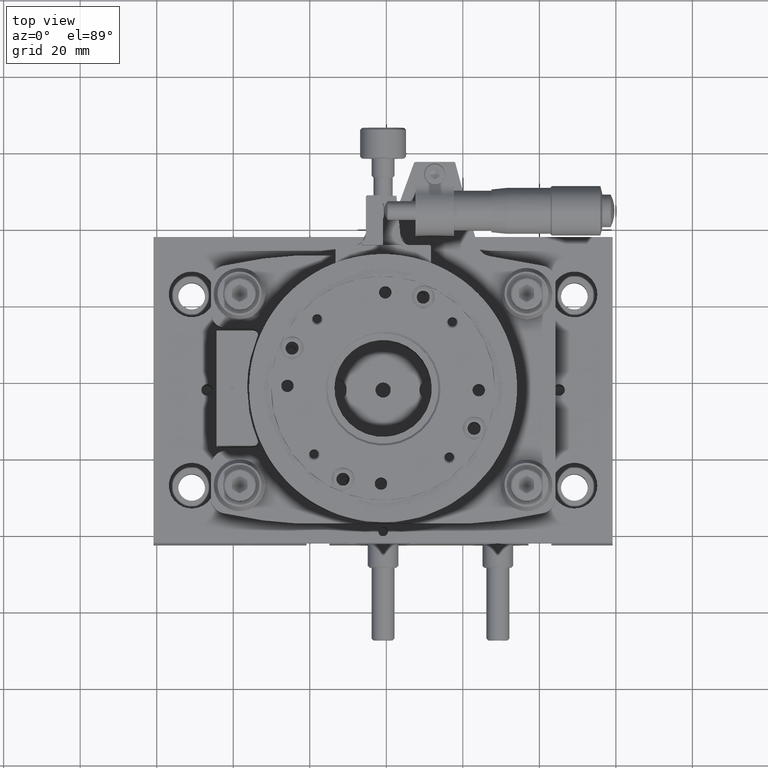
[diagram: clean part render]
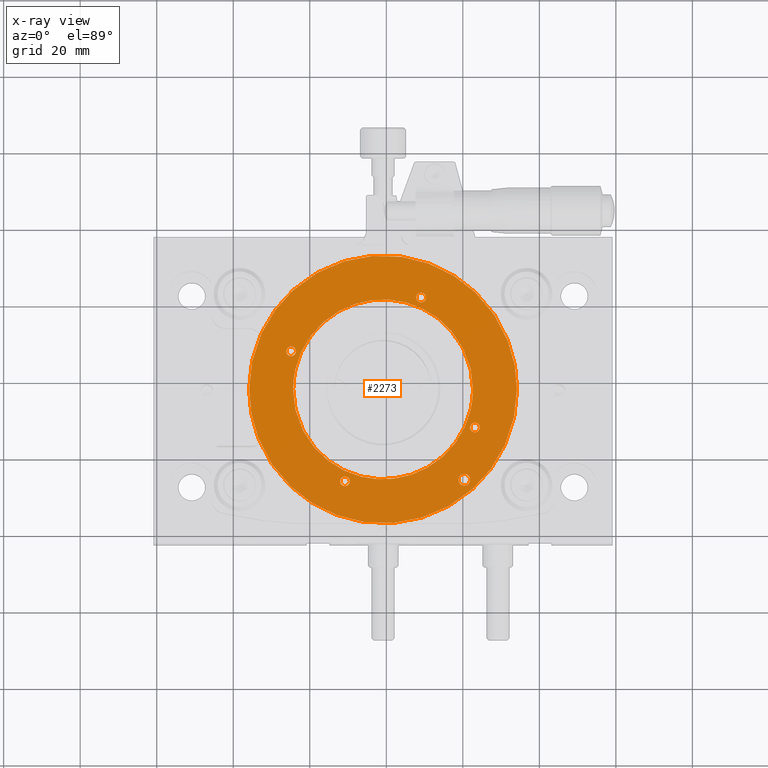
[diagram: x-ray — body ghosted, one internal face saturated and labeled with its STEP entity id]
A machine part, top view, then the same camera in x-ray: the body is ghosted and one INTERNAL B-rep face — a face not visible from any outside direction — is saturated and labeled: STEP entity #2273.
In plain terms, the highlighted face is a freeform B-spline surface patch.
Its self-contained STEP definition (entity closure, byte-faithful):
#2273=ADVANCED_FACE('',(#5470,#3413,#3414,#3415,#3416,#3417,#3418),#103291,
 .T.);
#3413=FACE_BOUND('',#8388,.T.);
#3414=FACE_BOUND('',#8389,.T.);
#3415=FACE_BOUND('',#8390,.T.);
#3416=FACE_BOUND('',#8391,.T.);
#3417=FACE_BOUND('',#8392,.T.);
#3418=FACE_BOUND('',#8393,.T.);
#5470=FACE_OUTER_BOUND('',#8387,.T.);
#8387=EDGE_LOOP('',(#18965,#18966));
#8388=EDGE_LOOP('',(#18967,#18968,#18969));
#8389=EDGE_LOOP('',(#18970,#18971));
#8390=EDGE_LOOP('',(#18972,#18973));
#8391=EDGE_LOOP('',(#18974,#18975));
#8392=EDGE_LOOP('',(#18976,#18977));
#8393=EDGE_LOOP('',(#18978,#18979));
#18965=ORIENTED_EDGE('',*,*,#89167,.T.);
#18966=ORIENTED_EDGE('',*,*,#89168,.T.);
#18967=ORIENTED_EDGE('',*,*,#84372,.F.);
#18968=ORIENTED_EDGE('',*,*,#84375,.F.);
#18969=ORIENTED_EDGE('',*,*,#84373,.F.);
#18970=ORIENTED_EDGE('',*,*,#89169,.T.);
#18971=ORIENTED_EDGE('',*,*,#89170,.T.);
#18972=ORIENTED_EDGE('',*,*,#89171,.T.);
#18973=ORIENTED_EDGE('',*,*,#89172,.T.);
#18974=ORIENTED_EDGE('',*,*,#89173,.T.);
#18975=ORIENTED_EDGE('',*,*,#89174,.T.);
#18976=ORIENTED_EDGE('',*,*,#89175,.T.);
#18977=ORIENTED_EDGE('',*,*,#89176,.T.);
#18978=ORIENTED_EDGE('',*,*,#89177,.T.);
#18979=ORIENTED_EDGE('',*,*,#89178,.T.);
#25689=B_SPLINE_CURVE_WITH_KNOTS('',1,(#122135,#122136),.UNSPECIFIED.,.F.,
 .F.,(2,2),(-4.74611992793683,-4.71238898038469),.UNSPECIFIED.);
#25690=B_SPLINE_CURVE_WITH_KNOTS('',1,(#122142,#122143),.UNSPECIFIED.,.F.,
 .F.,(2,2),(-4.71238898038469,0.),.UNSPECIFIED.);
#25693=B_SPLINE_CURVE_WITH_KNOTS('',1,(#122153,#122154),.UNSPECIFIED.,.F.,
 .F.,(2,2),(-9.42477796076938,-4.74611992793683),.UNSPECIFIED.);
#38300=B_SPLINE_CURVE_WITH_KNOTS('',1,(#156295,#156296),.UNSPECIFIED.,.F.,
 .F.,(2,2),(0.,73.8274273593593),.UNSPECIFIED.);
#38305=B_SPLINE_CURVE_WITH_KNOTS('',1,(#156310,#156311),.UNSPECIFIED.,.F.,
 .F.,(2,2),(73.8274273593593,147.65485471872),.UNSPECIFIED.);
#38334=B_SPLINE_CURVE_WITH_KNOTS('',1,(#156515,#156516),.UNSPECIFIED.,.F.,
 .F.,(2,2),(0.,3.92699081698724),.UNSPECIFIED.);
#38341=B_SPLINE_CURVE_WITH_KNOTS('',1,(#156529,#156530),.UNSPECIFIED.,.F.,
 .F.,(2,2),(0.,3.92699081698724),.UNSPECIFIED.);
#38349=B_SPLINE_CURVE_WITH_KNOTS('',1,(#156545,#156546),.UNSPECIFIED.,.F.,
 .F.,(2,2),(0.,3.92699081698724),.UNSPECIFIED.);
#38356=B_SPLINE_CURVE_WITH_KNOTS('',1,(#156559,#156560),.UNSPECIFIED.,.F.,
 .F.,(2,2),(0.,3.92699081698724),.UNSPECIFIED.);
#38364=B_SPLINE_CURVE_WITH_KNOTS('',1,(#156575,#156576),.UNSPECIFIED.,.F.,
 .F.,(2,2),(-219.911485751286,-109.955742875643),.UNSPECIFIED.);
#39164=B_SPLINE_CURVE_WITH_KNOTS('',1,(#158719,#158720),.UNSPECIFIED.,.F.,
 .F.,(2,2),(3.92699081698724,7.85398163397448),.UNSPECIFIED.);
#39168=B_SPLINE_CURVE_WITH_KNOTS('',1,(#158727,#158728),.UNSPECIFIED.,.F.,
 .F.,(2,2),(3.92699081698724,7.85398163397448),.UNSPECIFIED.);
#39173=B_SPLINE_CURVE_WITH_KNOTS('',1,(#158737,#158738),.UNSPECIFIED.,.F.,
 .F.,(2,2),(3.92699081698724,7.85398163397448),.UNSPECIFIED.);
#39179=B_SPLINE_CURVE_WITH_KNOTS('',1,(#158749,#158750),.UNSPECIFIED.,.F.,
 .F.,(2,2),(3.92699081698724,7.85398163397448),.UNSPECIFIED.);
#39542=B_SPLINE_CURVE_WITH_KNOTS('',1,(#159475,#159476),.UNSPECIFIED.,.F.,
 .F.,(2,2),(-109.955742875643,0.),.UNSPECIFIED.);
#45518=PCURVE('',#100951,#61111);
#45519=PCURVE('',#100951,#61112);
#45521=PCURVE('',#100952,#61114);
#54370=PCURVE('',#103291,#69963);
#54371=PCURVE('',#103291,#69964);
#54372=PCURVE('',#103291,#69965);
#54373=PCURVE('',#103291,#69966);
#54374=PCURVE('',#103291,#69967);
#54375=PCURVE('',#103291,#69968);
#54376=PCURVE('',#103291,#69969);
#54377=PCURVE('',#103291,#69970);
#54378=PCURVE('',#103291,#69971);
#54379=PCURVE('',#103291,#69972);
#54380=PCURVE('',#103291,#69973);
#54381=PCURVE('',#103291,#69974);
#54382=PCURVE('',#103291,#69975);
#54383=PCURVE('',#103291,#69976);
#54384=PCURVE('',#103291,#69977);
#54386=PCURVE('',#101021,#69979);
#54390=PCURVE('',#101022,#69983);
#54429=PCURVE('',#101028,#70022);
#54434=PCURVE('',#101029,#70027);
#54440=PCURVE('',#101030,#70033);
#54445=PCURVE('',#101031,#70038);
#54450=PCURVE('',#101032,#70043);
#55184=PCURVE('',#101068,#70777);
#55188=PCURVE('',#101069,#70781);
#55193=PCURVE('',#101070,#70786);
#55199=PCURVE('',#101071,#70792);
#55562=PCURVE('',#101072,#71155);
#61111=DEFINITIONAL_REPRESENTATION('',(#25689),#197026);
#61112=DEFINITIONAL_REPRESENTATION('',(#25690),#197026);
#61114=DEFINITIONAL_REPRESENTATION('',(#25693),#197026);
#69963=DEFINITIONAL_REPRESENTATION('',(#93286),#197026);
#69964=DEFINITIONAL_REPRESENTATION('',(#93288),#197026);
#69965=DEFINITIONAL_REPRESENTATION('',(#93289),#197026);
#69966=DEFINITIONAL_REPRESENTATION('',(#93290),#197026);
#69967=DEFINITIONAL_REPRESENTATION('',(#93291),#197026);
#69968=DEFINITIONAL_REPRESENTATION('',(#93293),#197026);
#69969=DEFINITIONAL_REPRESENTATION('',(#93295),#197026);
#69970=DEFINITIONAL_REPRESENTATION('',(#93297),#197026);
#69971=DEFINITIONAL_REPRESENTATION('',(#93299),#197026);
#69972=DEFINITIONAL_REPRESENTATION('',(#93301),#197026);
#69973=DEFINITIONAL_REPRESENTATION('',(#93303),#197026);
#69974=DEFINITIONAL_REPRESENTATION('',(#93305),#197026);
#69975=DEFINITIONAL_REPRESENTATION('',(#93307),#197026);
#69976=DEFINITIONAL_REPRESENTATION('',(#93309),#197026);
#69977=DEFINITIONAL_REPRESENTATION('',(#93311),#197026);
#69979=DEFINITIONAL_REPRESENTATION('',(#38300),#197026);
#69983=DEFINITIONAL_REPRESENTATION('',(#38305),#197026);
#70022=DEFINITIONAL_REPRESENTATION('',(#38334),#197026);
#70027=DEFINITIONAL_REPRESENTATION('',(#38341),#197026);
#70033=DEFINITIONAL_REPRESENTATION('',(#38349),#197026);
#70038=DEFINITIONAL_REPRESENTATION('',(#38356),#197026);
#70043=DEFINITIONAL_REPRESENTATION('',(#38364),#197026);
#70777=DEFINITIONAL_REPRESENTATION('',(#39164),#197026);
#70781=DEFINITIONAL_REPRESENTATION('',(#39168),#197026);
#70786=DEFINITIONAL_REPRESENTATION('',(#39173),#197026);
#70792=DEFINITIONAL_REPRESENTATION('',(#39179),#197026);
#71155=DEFINITIONAL_REPRESENTATION('',(#39542),#197026);
#76514=SURFACE_CURVE('',#92247,(#45518,#54372),.PCURVE_S1.);
#76515=SURFACE_CURVE('',#92248,(#45519,#54374),.PCURVE_S1.);
#76517=SURFACE_CURVE('',#92249,(#45521,#54373),.PCURVE_S1.);
#81309=SURFACE_CURVE('',#93285,(#54370,#54450),.PCURVE_S1.);
#81310=SURFACE_CURVE('',#93287,(#54371,#55562),.PCURVE_S1.);
#81311=SURFACE_CURVE('',#93292,(#54375,#55199),.PCURVE_S1.);
#81312=SURFACE_CURVE('',#93294,(#54376,#54445),.PCURVE_S1.);
#81313=SURFACE_CURVE('',#93296,(#54377,#55193),.PCURVE_S1.);
#81314=SURFACE_CURVE('',#93298,(#54378,#54440),.PCURVE_S1.);
#81315=SURFACE_CURVE('',#93300,(#54379,#55188),.PCURVE_S1.);
#81316=SURFACE_CURVE('',#93302,(#54380,#54434),.PCURVE_S1.);
#81317=SURFACE_CURVE('',#93304,(#54381,#55184),.PCURVE_S1.);
#81318=SURFACE_CURVE('',#93306,(#54382,#54429),.PCURVE_S1.);
#81319=SURFACE_CURVE('',#93308,(#54383,#54390),.PCURVE_S1.);
#81320=SURFACE_CURVE('',#93310,(#54384,#54386),.PCURVE_S1.);
#84372=EDGE_CURVE('',#95797,#98999,#76514,.T.);
#84373=EDGE_CURVE('',#98999,#95796,#76515,.T.);
#84375=EDGE_CURVE('',#95796,#95797,#76517,.T.);
#89167=EDGE_CURVE('',#98997,#98998,#81309,.T.);
#89168=EDGE_CURVE('',#98998,#98997,#81310,.T.);
#89169=EDGE_CURVE('',#99001,#99000,#81311,.T.);
#89170=EDGE_CURVE('',#99000,#99001,#81312,.T.);
#89171=EDGE_CURVE('',#99003,#99002,#81313,.T.);
#89172=EDGE_CURVE('',#99002,#99003,#81314,.T.);
#89173=EDGE_CURVE('',#99005,#99004,#81315,.T.);
#89174=EDGE_CURVE('',#99004,#99005,#81316,.T.);
#89175=EDGE_CURVE('',#99007,#99006,#81317,.T.);
#89176=EDGE_CURVE('',#99006,#99007,#81318,.T.);
#89177=EDGE_CURVE('',#99009,#99008,#81319,.T.);
#89178=EDGE_CURVE('',#99008,#99009,#81320,.T.);
#92247=(
BOUNDED_CURVE()
B_SPLINE_CURVE(2,(#122132,#122133,#122134),.UNSPECIFIED.,.F.,.F.)
B_SPLINE_CURVE_WITH_KNOTS((3,3),(-4.74611992793683,-4.71238898038469),
 .UNSPECIFIED.)
CURVE()
GEOMETRIC_REPRESENTATION_ITEM()
RATIONAL_B_SPLINE_CURVE((1.,0.999936790842422,1.))
REPRESENTATION_ITEM('')
);
#92248=(
BOUNDED_CURVE()
B_SPLINE_CURVE(2,(#122137,#122138,#122139,#122140,#122141),
 .UNSPECIFIED.,.F.,.F.)
B_SPLINE_CURVE_WITH_KNOTS((3,2,3),(-4.71238898038469,-2.35619449019234,
0.),.UNSPECIFIED.)
CURVE()
GEOMETRIC_REPRESENTATION_ITEM()
RATIONAL_B_SPLINE_CURVE((1.,0.707106781186544,1.,0.707106781186544,1.))
REPRESENTATION_ITEM('')
);
#92249=(
BOUNDED_CURVE()
B_SPLINE_CURVE(2,(#122148,#122149,#122150,#122151,#122152),
 .UNSPECIFIED.,.F.,.F.)
B_SPLINE_CURVE_WITH_KNOTS((3,2,3),(-9.42477796076938,-7.08544894435311,
-4.74611992793683),.UNSPECIFIED.)
CURVE()
GEOMETRIC_REPRESENTATION_ITEM()
RATIONAL_B_SPLINE_CURVE((1.,0.711070816544498,1.,0.711070816544498,1.))
REPRESENTATION_ITEM('')
);
#93285=(
BOUNDED_CURVE()
B_SPLINE_CURVE(2,(#156158,#156159,#156160,#156161,#156162),
 .UNSPECIFIED.,.F.,.F.)
B_SPLINE_CURVE_WITH_KNOTS((3,2,3),(-219.911485751286,-164.933614313464,
-109.955742875643),.UNSPECIFIED.)
CURVE()
GEOMETRIC_REPRESENTATION_ITEM()
RATIONAL_B_SPLINE_CURVE((1.,0.707106781186548,1.,0.707106781186548,1.))
REPRESENTATION_ITEM('')
);
#93286=(
BOUNDED_CURVE()
B_SPLINE_CURVE(2,(#156163,#156164,#156165,#156166,#156167),
 .UNSPECIFIED.,.F.,.F.)
B_SPLINE_CURVE_WITH_KNOTS((3,2,3),(-219.911485751286,-164.933614313464,
-109.955742875643),.UNSPECIFIED.)
CURVE()
GEOMETRIC_REPRESENTATION_ITEM()
RATIONAL_B_SPLINE_CURVE((1.,0.707106781186548,1.,0.707106781186548,1.))
REPRESENTATION_ITEM('')
);
#93287=(
BOUNDED_CURVE()
B_SPLINE_CURVE(2,(#156168,#156169,#156170,#156171,#156172),
 .UNSPECIFIED.,.F.,.F.)
B_SPLINE_CURVE_WITH_KNOTS((3,2,3),(-109.955742875643,-54.9778714378214,
0.),.UNSPECIFIED.)
CURVE()
GEOMETRIC_REPRESENTATION_ITEM()
RATIONAL_B_SPLINE_CURVE((1.,0.707106781186548,1.,0.707106781186548,1.))
REPRESENTATION_ITEM('')
);
#93288=(
BOUNDED_CURVE()
B_SPLINE_CURVE(2,(#156173,#156174,#156175,#156176,#156177),
 .UNSPECIFIED.,.F.,.F.)
B_SPLINE_CURVE_WITH_KNOTS((3,2,3),(-109.955742875643,-54.9778714378214,
0.),.UNSPECIFIED.)
CURVE()
GEOMETRIC_REPRESENTATION_ITEM()
RATIONAL_B_SPLINE_CURVE((1.,0.707106781186548,1.,0.707106781186548,1.))
REPRESENTATION_ITEM('')
);
#93289=(
BOUNDED_CURVE()
B_SPLINE_CURVE(2,(#156178,#156179,#156180),.UNSPECIFIED.,.F.,.F.)
B_SPLINE_CURVE_WITH_KNOTS((3,3),(-4.74611992793683,-4.71238898038469),
 .UNSPECIFIED.)
CURVE()
GEOMETRIC_REPRESENTATION_ITEM()
RATIONAL_B_SPLINE_CURVE((1.,0.999936790842417,1.))
REPRESENTATION_ITEM('')
);
#93290=(
BOUNDED_CURVE()
B_SPLINE_CURVE(2,(#156181,#156182,#156183,#156184,#156185),
 .UNSPECIFIED.,.F.,.F.)
B_SPLINE_CURVE_WITH_KNOTS((3,2,3),(-9.42477796076938,-7.06678796069878,
-4.74611992793683),.UNSPECIFIED.)
CURVE()
GEOMETRIC_REPRESENTATION_ITEM()
RATIONAL_B_SPLINE_CURVE((1.,0.707106781186548,1.,0.715012378631638,1.))
REPRESENTATION_ITEM('')
);
#93291=(
BOUNDED_CURVE()
B_SPLINE_CURVE(2,(#156186,#156187,#156188,#156189,#156190),
 .UNSPECIFIED.,.F.,.F.)
B_SPLINE_CURVE_WITH_KNOTS((3,2,3),(-4.71238898038469,-2.35619449019234,
0.),.UNSPECIFIED.)
CURVE()
GEOMETRIC_REPRESENTATION_ITEM()
RATIONAL_B_SPLINE_CURVE((1.,0.707106781186548,1.,0.707106781186548,1.))
REPRESENTATION_ITEM('')
);
#93292=(
BOUNDED_CURVE()
B_SPLINE_CURVE(2,(#156191,#156192,#156193,#156194,#156195),
 .UNSPECIFIED.,.F.,.F.)
B_SPLINE_CURVE_WITH_KNOTS((3,2,3),(3.92699081698724,5.89048622548086,7.85398163397448),
 .UNSPECIFIED.)
CURVE()
GEOMETRIC_REPRESENTATION_ITEM()
RATIONAL_B_SPLINE_CURVE((1.,0.707106781186548,1.,0.707106781186548,1.))
REPRESENTATION_ITEM('')
);
#93293=(
BOUNDED_CURVE()
B_SPLINE_CURVE(2,(#156196,#156197,#156198,#156199,#156200),
 .UNSPECIFIED.,.F.,.F.)
B_SPLINE_CURVE_WITH_KNOTS((3,2,3),(3.92699081698724,5.89048622548086,7.85398163397448),
 .UNSPECIFIED.)
CURVE()
GEOMETRIC_REPRESENTATION_ITEM()
RATIONAL_B_SPLINE_CURVE((1.,0.707106781186548,1.,0.707106781186548,1.))
REPRESENTATION_ITEM('')
);
#93294=(
BOUNDED_CURVE()
B_SPLINE_CURVE(2,(#156201,#156202,#156203,#156204,#156205),
 .UNSPECIFIED.,.F.,.F.)
B_SPLINE_CURVE_WITH_KNOTS((3,2,3),(0.,1.96349540849362,3.92699081698724),
 .UNSPECIFIED.)
CURVE()
GEOMETRIC_REPRESENTATION_ITEM()
RATIONAL_B_SPLINE_CURVE((1.,0.707106781186548,1.,0.707106781186548,1.))
REPRESENTATION_ITEM('')
);
#93295=(
BOUNDED_CURVE()
B_SPLINE_CURVE(2,(#156206,#156207,#156208,#156209,#156210),
 .UNSPECIFIED.,.F.,.F.)
B_SPLINE_CURVE_WITH_KNOTS((3,2,3),(0.,1.96349540849362,3.92699081698724),
 .UNSPECIFIED.)
CURVE()
GEOMETRIC_REPRESENTATION_ITEM()
RATIONAL_B_SPLINE_CURVE((1.,0.707106781186548,1.,0.707106781186548,1.))
REPRESENTATION_ITEM('')
);
#93296=(
BOUNDED_CURVE()
B_SPLINE_CURVE(2,(#156211,#156212,#156213,#156214,#156215),
 .UNSPECIFIED.,.F.,.F.)
B_SPLINE_CURVE_WITH_KNOTS((3,2,3),(3.92699081698724,5.89048622548086,7.85398163397448),
 .UNSPECIFIED.)
CURVE()
GEOMETRIC_REPRESENTATION_ITEM()
RATIONAL_B_SPLINE_CURVE((1.,0.707106781186549,1.,0.707106781186549,1.))
REPRESENTATION_ITEM('')
);
#93297=(
BOUNDED_CURVE()
B_SPLINE_CURVE(2,(#156216,#156217,#156218,#156219,#156220),
 .UNSPECIFIED.,.F.,.F.)
B_SPLINE_CURVE_WITH_KNOTS((3,2,3),(3.92699081698724,5.89048622548086,7.85398163397448),
 .UNSPECIFIED.)
CURVE()
GEOMETRIC_REPRESENTATION_ITEM()
RATIONAL_B_SPLINE_CURVE((1.,0.707106781186548,1.,0.707106781186548,1.))
REPRESENTATION_ITEM('')
);
#93298=(
BOUNDED_CURVE()
B_SPLINE_CURVE(2,(#156221,#156222,#156223,#156224,#156225),
 .UNSPECIFIED.,.F.,.F.)
B_SPLINE_CURVE_WITH_KNOTS((3,2,3),(0.,1.96349540849362,3.92699081698724),
 .UNSPECIFIED.)
CURVE()
GEOMETRIC_REPRESENTATION_ITEM()
RATIONAL_B_SPLINE_CURVE((1.,0.707106781186541,1.,0.707106781186541,1.))
REPRESENTATION_ITEM('')
);
#93299=(
BOUNDED_CURVE()
B_SPLINE_CURVE(2,(#156226,#156227,#156228,#156229,#156230),
 .UNSPECIFIED.,.F.,.F.)
B_SPLINE_CURVE_WITH_KNOTS((3,2,3),(0.,1.96349540849362,3.92699081698724),
 .UNSPECIFIED.)
CURVE()
GEOMETRIC_REPRESENTATION_ITEM()
RATIONAL_B_SPLINE_CURVE((1.,0.707106781186548,1.,0.707106781186548,1.))
REPRESENTATION_ITEM('')
);
#93300=(
BOUNDED_CURVE()
B_SPLINE_CURVE(2,(#156231,#156232,#156233,#156234,#156235),
 .UNSPECIFIED.,.F.,.F.)
B_SPLINE_CURVE_WITH_KNOTS((3,2,3),(3.92699081698724,5.89048622548086,7.85398163397448),
 .UNSPECIFIED.)
CURVE()
GEOMETRIC_REPRESENTATION_ITEM()
RATIONAL_B_SPLINE_CURVE((1.,0.707106781186548,1.,0.707106781186548,1.))
REPRESENTATION_ITEM('')
);
#93301=(
BOUNDED_CURVE()
B_SPLINE_CURVE(2,(#156236,#156237,#156238,#156239,#156240),
 .UNSPECIFIED.,.F.,.F.)
B_SPLINE_CURVE_WITH_KNOTS((3,2,3),(3.92699081698724,5.89048622548086,7.85398163397448),
 .UNSPECIFIED.)
CURVE()
GEOMETRIC_REPRESENTATION_ITEM()
RATIONAL_B_SPLINE_CURVE((1.,0.707106781186548,1.,0.707106781186548,1.))
REPRESENTATION_ITEM('')
);
#93302=(
BOUNDED_CURVE()
B_SPLINE_CURVE(2,(#156241,#156242,#156243,#156244,#156245),
 .UNSPECIFIED.,.F.,.F.)
B_SPLINE_CURVE_WITH_KNOTS((3,2,3),(0.,1.96349540849362,3.92699081698724),
 .UNSPECIFIED.)
CURVE()
GEOMETRIC_REPRESENTATION_ITEM()
RATIONAL_B_SPLINE_CURVE((1.,0.707106781186548,1.,0.707106781186548,1.))
REPRESENTATION_ITEM('')
);
#93303=(
BOUNDED_CURVE()
B_SPLINE_CURVE(2,(#156246,#156247,#156248,#156249,#156250),
 .UNSPECIFIED.,.F.,.F.)
B_SPLINE_CURVE_WITH_KNOTS((3,2,3),(0.,1.96349540849362,3.92699081698724),
 .UNSPECIFIED.)
CURVE()
GEOMETRIC_REPRESENTATION_ITEM()
RATIONAL_B_SPLINE_CURVE((1.,0.707106781186548,1.,0.707106781186548,1.))
REPRESENTATION_ITEM('')
);
#93304=(
BOUNDED_CURVE()
B_SPLINE_CURVE(2,(#156251,#156252,#156253,#156254,#156255),
 .UNSPECIFIED.,.F.,.F.)
B_SPLINE_CURVE_WITH_KNOTS((3,2,3),(3.92699081698724,5.89048622548086,7.85398163397448),
 .UNSPECIFIED.)
CURVE()
GEOMETRIC_REPRESENTATION_ITEM()
RATIONAL_B_SPLINE_CURVE((1.,0.707106781186549,1.,0.707106781186549,1.))
REPRESENTATION_ITEM('')
);
#93305=(
BOUNDED_CURVE()
B_SPLINE_CURVE(2,(#156256,#156257,#156258,#156259,#156260),
 .UNSPECIFIED.,.F.,.F.)
B_SPLINE_CURVE_WITH_KNOTS((3,2,3),(3.92699081698724,5.89048622548086,7.85398163397448),
 .UNSPECIFIED.)
CURVE()
GEOMETRIC_REPRESENTATION_ITEM()
RATIONAL_B_SPLINE_CURVE((1.,0.707106781186548,1.,0.707106781186548,1.))
REPRESENTATION_ITEM('')
);
#93306=(
BOUNDED_CURVE()
B_SPLINE_CURVE(2,(#156261,#156262,#156263,#156264,#156265),
 .UNSPECIFIED.,.F.,.F.)
B_SPLINE_CURVE_WITH_KNOTS((3,2,3),(0.,1.96349540849362,3.92699081698724),
 .UNSPECIFIED.)
CURVE()
GEOMETRIC_REPRESENTATION_ITEM()
RATIONAL_B_SPLINE_CURVE((1.,0.707106781186544,1.,0.707106781186544,1.))
REPRESENTATION_ITEM('')
);
#93307=(
BOUNDED_CURVE()
B_SPLINE_CURVE(2,(#156266,#156267,#156268,#156269,#156270),
 .UNSPECIFIED.,.F.,.F.)
B_SPLINE_CURVE_WITH_KNOTS((3,2,3),(0.,1.96349540849362,3.92699081698724),
 .UNSPECIFIED.)
CURVE()
GEOMETRIC_REPRESENTATION_ITEM()
RATIONAL_B_SPLINE_CURVE((1.,0.707106781186548,1.,0.707106781186548,1.))
REPRESENTATION_ITEM('')
);
#93308=(
BOUNDED_CURVE()
B_SPLINE_CURVE(2,(#156271,#156272,#156273,#156274,#156275),
 .UNSPECIFIED.,.F.,.F.)
B_SPLINE_CURVE_WITH_KNOTS((3,2,3),(73.8274273593593,110.74114103904,147.65485471872),
 .UNSPECIFIED.)
CURVE()
GEOMETRIC_REPRESENTATION_ITEM()
RATIONAL_B_SPLINE_CURVE((1.,0.707106781186548,1.,0.707106781186548,1.))
REPRESENTATION_ITEM('')
);
#93309=(
BOUNDED_CURVE()
B_SPLINE_CURVE(2,(#156276,#156277,#156278,#156279,#156280),
 .UNSPECIFIED.,.F.,.F.)
B_SPLINE_CURVE_WITH_KNOTS((3,2,3),(73.8274273593593,110.74114103904,147.65485471872),
 .UNSPECIFIED.)
CURVE()
GEOMETRIC_REPRESENTATION_ITEM()
RATIONAL_B_SPLINE_CURVE((1.,0.707106781186548,1.,0.707106781186548,1.))
REPRESENTATION_ITEM('')
);
#93310=(
BOUNDED_CURVE()
B_SPLINE_CURVE(2,(#156281,#156282,#156283,#156284,#156285),
 .UNSPECIFIED.,.F.,.F.)
B_SPLINE_CURVE_WITH_KNOTS((3,2,3),(0.,36.9137136796797,73.8274273593593),
 .UNSPECIFIED.)
CURVE()
GEOMETRIC_REPRESENTATION_ITEM()
RATIONAL_B_SPLINE_CURVE((1.,0.707106781186548,1.,0.707106781186548,1.))
REPRESENTATION_ITEM('')
);
#93311=(
BOUNDED_CURVE()
B_SPLINE_CURVE(2,(#156286,#156287,#156288,#156289,#156290),
 .UNSPECIFIED.,.F.,.F.)
B_SPLINE_CURVE_WITH_KNOTS((3,2,3),(0.,36.9137136796797,73.8274273593593),
 .UNSPECIFIED.)
CURVE()
GEOMETRIC_REPRESENTATION_ITEM()
RATIONAL_B_SPLINE_CURVE((1.,0.707106781186548,1.,0.707106781186548,1.))
REPRESENTATION_ITEM('')
);
#95796=VERTEX_POINT('',#118524);
#95797=VERTEX_POINT('',#118525);
#98997=VERTEX_POINT('',#121725);
#98998=VERTEX_POINT('',#121726);
#98999=VERTEX_POINT('',#121727);
#99000=VERTEX_POINT('',#121728);
#99001=VERTEX_POINT('',#121729);
#99002=VERTEX_POINT('',#121730);
#99003=VERTEX_POINT('',#121731);
#99004=VERTEX_POINT('',#121732);
#99005=VERTEX_POINT('',#121733);
#99006=VERTEX_POINT('',#121734);
#99007=VERTEX_POINT('',#121735);
#99008=VERTEX_POINT('',#121736);
#99009=VERTEX_POINT('',#121737);
#100951=(
BOUNDED_SURFACE()
B_SPLINE_SURFACE(2,1,((#107651,#107652),(#107653,#107654),(#107655,#107656),
(#107657,#107658),(#107659,#107660),(#107661,#107662),(#107663,#107664),
(#107665,#107666),(#107667,#107668)),.UNSPECIFIED.,.T.,.F.,.F.)
B_SPLINE_SURFACE_WITH_KNOTS((3,2,2,2,3),(2,2),(0.,1.5707963267949,3.14159265358979,
4.71238898038469,6.28318530717959),(0.,3.84000000000013),.UNSPECIFIED.)
GEOMETRIC_REPRESENTATION_ITEM()
RATIONAL_B_SPLINE_SURFACE(((1.,1.),(0.707106781186548,0.707106781186548),
(1.,1.),(0.707106781186548,0.707106781186548),(1.,1.),(0.707106781186548,
0.707106781186548),(1.,1.),(0.707106781186548,0.707106781186548),(1.,1.)))
REPRESENTATION_ITEM('')
SURFACE()
);
#100952=(
BOUNDED_SURFACE()
B_SPLINE_SURFACE(2,1,((#107669,#107670),(#107671,#107672),(#107673,#107674),
(#107675,#107676),(#107677,#107678),(#107679,#107680),(#107681,#107682),
(#107683,#107684),(#107685,#107686)),.UNSPECIFIED.,.T.,.F.,.F.)
B_SPLINE_SURFACE_WITH_KNOTS((3,2,2,2,3),(2,2),(0.,1.5707963267949,3.14159265358979,
4.71238898038469,6.28318530717959),(0.,3.84000000000013),.UNSPECIFIED.)
GEOMETRIC_REPRESENTATION_ITEM()
RATIONAL_B_SPLINE_SURFACE(((1.,1.),(0.707106781186548,0.707106781186548),
(1.,1.),(0.707106781186548,0.707106781186548),(1.,1.),(0.707106781186548,
0.707106781186548),(1.,1.),(0.707106781186548,0.707106781186548),(1.,1.)))
REPRESENTATION_ITEM('')
SURFACE()
);
#101021=(
BOUNDED_SURFACE()
B_SPLINE_SURFACE(1,2,((#117511,#117512,#117513,#117514,#117515,#117516,
#117517,#117518,#117519),(#117520,#117521,#117522,#117523,#117524,#117525,
#117526,#117527,#117528)),.UNSPECIFIED.,.F.,.F.,.F.)
B_SPLINE_SURFACE_WITH_KNOTS((2,2),(3,2,2,2,3),(0.,8.64000000000007),(0.,
36.9137136796801,73.8274273593601,110.74114103904,147.65485471872),
 .UNSPECIFIED.)
GEOMETRIC_REPRESENTATION_ITEM()
RATIONAL_B_SPLINE_SURFACE(((1.,0.707106781186548,1.,0.707106781186548,1.,
0.707106781186548,1.,0.707106781186548,1.),(1.,0.707106781186548,1.,0.707106781186548,
1.,0.707106781186548,1.,0.707106781186548,1.)))
REPRESENTATION_ITEM('')
SURFACE()
);
#101022=(
BOUNDED_SURFACE()
B_SPLINE_SURFACE(1,2,((#117529,#117530,#117531,#117532,#117533,#117534,
#117535,#117536,#117537),(#117538,#117539,#117540,#117541,#117542,#117543,
#117544,#117545,#117546)),.UNSPECIFIED.,.F.,.F.,.F.)
B_SPLINE_SURFACE_WITH_KNOTS((2,2),(3,2,2,2,3),(0.,8.64000000000007),(0.,
36.9137136796801,73.8274273593601,110.74114103904,147.65485471872),
 .UNSPECIFIED.)
GEOMETRIC_REPRESENTATION_ITEM()
RATIONAL_B_SPLINE_SURFACE(((1.,0.707106781186548,1.,0.707106781186548,1.,
0.707106781186548,1.,0.707106781186548,1.),(1.,0.707106781186548,1.,0.707106781186548,
1.,0.707106781186548,1.,0.707106781186548,1.)))
REPRESENTATION_ITEM('')
SURFACE()
);
#101028=(
BOUNDED_SURFACE()
B_SPLINE_SURFACE(1,2,((#117645,#117646,#117647,#117648,#117649),(#117650,
#117651,#117652,#117653,#117654)),.UNSPECIFIED.,.F.,.F.,.F.)
B_SPLINE_SURFACE_WITH_KNOTS((2,2),(3,2,3),(0.,12.84),(0.,1.5707963267949,
3.14159265358979),.UNSPECIFIED.)
GEOMETRIC_REPRESENTATION_ITEM()
RATIONAL_B_SPLINE_SURFACE(((1.,0.707106781186548,1.,0.707106781186548,1.),
(1.,0.707106781186548,1.,0.707106781186548,1.)))
REPRESENTATION_ITEM('')
SURFACE()
);
#101029=(
BOUNDED_SURFACE()
B_SPLINE_SURFACE(1,2,((#117655,#117656,#117657,#117658,#117659),(#117660,
#117661,#117662,#117663,#117664)),.UNSPECIFIED.,.F.,.F.,.F.)
B_SPLINE_SURFACE_WITH_KNOTS((2,2),(3,2,3),(0.,12.8400000000001),(0.,1.5707963267949,
3.14159265358979),.UNSPECIFIED.)
GEOMETRIC_REPRESENTATION_ITEM()
RATIONAL_B_SPLINE_SURFACE(((1.,0.707106781186548,1.,0.707106781186548,1.),
(1.,0.707106781186548,1.,0.707106781186548,1.)))
REPRESENTATION_ITEM('')
SURFACE()
);
#101030=(
BOUNDED_SURFACE()
B_SPLINE_SURFACE(1,2,((#117665,#117666,#117667,#117668,#117669),(#117670,
#117671,#117672,#117673,#117674)),.UNSPECIFIED.,.F.,.F.,.F.)
B_SPLINE_SURFACE_WITH_KNOTS((2,2),(3,2,3),(0.,12.84),(0.,1.5707963267949,
3.14159265358979),.UNSPECIFIED.)
GEOMETRIC_REPRESENTATION_ITEM()
RATIONAL_B_SPLINE_SURFACE(((1.,0.707106781186548,1.,0.707106781186548,1.),
(1.,0.707106781186548,1.,0.707106781186548,1.)))
REPRESENTATION_ITEM('')
SURFACE()
);
#101031=(
BOUNDED_SURFACE()
B_SPLINE_SURFACE(1,2,((#117675,#117676,#117677,#117678,#117679),(#117680,
#117681,#117682,#117683,#117684)),.UNSPECIFIED.,.F.,.F.,.F.)
B_SPLINE_SURFACE_WITH_KNOTS((2,2),(3,2,3),(0.,12.84),(0.,1.5707963267949,
3.14159265358979),.UNSPECIFIED.)
GEOMETRIC_REPRESENTATION_ITEM()
RATIONAL_B_SPLINE_SURFACE(((1.,0.707106781186548,1.,0.707106781186548,1.),
(1.,0.707106781186548,1.,0.707106781186548,1.)))
REPRESENTATION_ITEM('')
SURFACE()
);
#101032=(
BOUNDED_SURFACE()
B_SPLINE_SURFACE(2,1,((#117685,#117686),(#117687,#117688),(#117689,#117690),
(#117691,#117692),(#117693,#117694)),.UNSPECIFIED.,.F.,.F.,.F.)
B_SPLINE_SURFACE_WITH_KNOTS((3,2,3),(2,2),(0.,54.9778714378214,109.955742875643),
(0.,24.2400000000001),.UNSPECIFIED.)
GEOMETRIC_REPRESENTATION_ITEM()
RATIONAL_B_SPLINE_SURFACE(((1.,1.),(0.707106781186548,0.707106781186548),
(1.,1.),(0.707106781186548,0.707106781186548),(1.,1.)))
REPRESENTATION_ITEM('')
SURFACE()
);
#101068=(
BOUNDED_SURFACE()
B_SPLINE_SURFACE(1,2,((#118433,#118434,#118435,#118436,#118437),(#118438,
#118439,#118440,#118441,#118442)),.UNSPECIFIED.,.F.,.F.,.F.)
B_SPLINE_SURFACE_WITH_KNOTS((2,2),(3,2,3),(0.,12.84),(3.14159265358979,
4.71238898038469,6.28318530717959),.UNSPECIFIED.)
GEOMETRIC_REPRESENTATION_ITEM()
RATIONAL_B_SPLINE_SURFACE(((1.,0.707106781186548,1.,0.707106781186548,1.),
(1.,0.707106781186548,1.,0.707106781186548,1.)))
REPRESENTATION_ITEM('')
SURFACE()
);
#101069=(
BOUNDED_SURFACE()
B_SPLINE_SURFACE(1,2,((#118443,#118444,#118445,#118446,#118447),(#118448,
#118449,#118450,#118451,#118452)),.UNSPECIFIED.,.F.,.F.,.F.)
B_SPLINE_SURFACE_WITH_KNOTS((2,2),(3,2,3),(0.,12.8400000000001),(3.14159265358979,
4.71238898038469,6.28318530717959),.UNSPECIFIED.)
GEOMETRIC_REPRESENTATION_ITEM()
RATIONAL_B_SPLINE_SURFACE(((1.,0.707106781186548,1.,0.707106781186548,1.),
(1.,0.707106781186548,1.,0.707106781186548,1.)))
REPRESENTATION_ITEM('')
SURFACE()
);
#101070=(
BOUNDED_SURFACE()
B_SPLINE_SURFACE(1,2,((#118453,#118454,#118455,#118456,#118457),(#118458,
#118459,#118460,#118461,#118462)),.UNSPECIFIED.,.F.,.F.,.F.)
B_SPLINE_SURFACE_WITH_KNOTS((2,2),(3,2,3),(0.,12.84),(3.14159265358979,
4.71238898038469,6.28318530717959),.UNSPECIFIED.)
GEOMETRIC_REPRESENTATION_ITEM()
RATIONAL_B_SPLINE_SURFACE(((1.,0.707106781186548,1.,0.707106781186548,1.),
(1.,0.707106781186548,1.,0.707106781186548,1.)))
REPRESENTATION_ITEM('')
SURFACE()
);
#101071=(
BOUNDED_SURFACE()
B_SPLINE_SURFACE(1,2,((#118463,#118464,#118465,#118466,#118467),(#118468,
#118469,#118470,#118471,#118472)),.UNSPECIFIED.,.F.,.F.,.F.)
B_SPLINE_SURFACE_WITH_KNOTS((2,2),(3,2,3),(0.,12.84),(3.14159265358979,
4.71238898038469,6.28318530717959),.UNSPECIFIED.)
GEOMETRIC_REPRESENTATION_ITEM()
RATIONAL_B_SPLINE_SURFACE(((1.,0.707106781186548,1.,0.707106781186548,1.),
(1.,0.707106781186548,1.,0.707106781186548,1.)))
REPRESENTATION_ITEM('')
SURFACE()
);
#101072=(
BOUNDED_SURFACE()
B_SPLINE_SURFACE(2,1,((#118473,#118474),(#118475,#118476),(#118477,#118478),
(#118479,#118480),(#118481,#118482)),.UNSPECIFIED.,.F.,.F.,.F.)
B_SPLINE_SURFACE_WITH_KNOTS((3,2,3),(2,2),(109.955742875643,164.933614313464,
219.911485751286),(0.,24.2400000000001),.UNSPECIFIED.)
GEOMETRIC_REPRESENTATION_ITEM()
RATIONAL_B_SPLINE_SURFACE(((1.,1.),(0.707106781186548,0.707106781186548),
(1.,1.),(0.707106781186548,0.707106781186548),(1.,1.)))
REPRESENTATION_ITEM('')
SURFACE()
);
#103291=B_SPLINE_SURFACE_WITH_KNOTS('',1,1,((#117507,#117508),(#117509,
#117510)),.UNSPECIFIED.,.F.,.F.,.F.,(2,2),(2,2),(-42.120000000003,42.120000000003),
(-42.120000000003,42.120000000003),.UNSPECIFIED.);
#107651=CARTESIAN_POINT('',(82.744896751894,-84.6476707704846,40.9799999999999));
#107652=CARTESIAN_POINT('',(82.744896751894,-84.6476707704846,44.82));
#107653=CARTESIAN_POINT('',(82.744896751894,-83.1476707704846,40.9799999999999));
#107654=CARTESIAN_POINT('',(82.744896751894,-83.1476707704846,44.82));
#107655=CARTESIAN_POINT('',(81.244896751894,-83.1476707704846,40.9799999999999));
#107656=CARTESIAN_POINT('',(81.244896751894,-83.1476707704846,44.82));
#107657=CARTESIAN_POINT('',(79.744896751894,-83.1476707704846,40.9799999999999));
#107658=CARTESIAN_POINT('',(79.744896751894,-83.1476707704846,44.82));
#107659=CARTESIAN_POINT('',(79.744896751894,-84.6476707704846,40.9799999999999));
#107660=CARTESIAN_POINT('',(79.744896751894,-84.6476707704846,44.82));
#107661=CARTESIAN_POINT('',(79.744896751894,-86.1476707704846,40.9799999999999));
#107662=CARTESIAN_POINT('',(79.744896751894,-86.1476707704846,44.82));
#107663=CARTESIAN_POINT('',(81.244896751894,-86.1476707704846,40.9799999999999));
#107664=CARTESIAN_POINT('',(81.244896751894,-86.1476707704846,44.82));
#107665=CARTESIAN_POINT('',(82.744896751894,-86.1476707704846,40.9799999999999));
#107666=CARTESIAN_POINT('',(82.744896751894,-86.1476707704846,44.82));
#107667=CARTESIAN_POINT('',(82.744896751894,-84.6476707704846,40.9799999999999));
#107668=CARTESIAN_POINT('',(82.744896751894,-84.6476707704846,44.82));
#107669=CARTESIAN_POINT('',(82.744896751894,-84.6476707704846,40.9799999999999));
#107670=CARTESIAN_POINT('',(82.744896751894,-84.6476707704846,44.82));
#107671=CARTESIAN_POINT('',(82.744896751894,-83.1476707704846,40.9799999999999));
#107672=CARTESIAN_POINT('',(82.744896751894,-83.1476707704846,44.82));
#107673=CARTESIAN_POINT('',(81.244896751894,-83.1476707704846,40.9799999999999));
#107674=CARTESIAN_POINT('',(81.244896751894,-83.1476707704846,44.82));
#107675=CARTESIAN_POINT('',(79.744896751894,-83.1476707704846,40.9799999999999));
#107676=CARTESIAN_POINT('',(79.744896751894,-83.1476707704846,44.82));
#107677=CARTESIAN_POINT('',(79.744896751894,-84.6476707704846,40.9799999999999));
#107678=CARTESIAN_POINT('',(79.744896751894,-84.6476707704846,44.82));
#107679=CARTESIAN_POINT('',(79.744896751894,-86.1476707704846,40.9799999999999));
#107680=CARTESIAN_POINT('',(79.744896751894,-86.1476707704846,44.82));
#107681=CARTESIAN_POINT('',(81.244896751894,-86.1476707704846,40.9799999999999));
#107682=CARTESIAN_POINT('',(81.244896751894,-86.1476707704846,44.82));
#107683=CARTESIAN_POINT('',(82.744896751894,-86.1476707704846,40.9799999999999));
#107684=CARTESIAN_POINT('',(82.744896751894,-86.1476707704846,44.82));
#107685=CARTESIAN_POINT('',(82.744896751894,-84.6476707704846,40.9799999999999));
#107686=CARTESIAN_POINT('',(82.744896751894,-84.6476707704846,44.82));
#117507=CARTESIAN_POINT('',(17.8799999999946,-18.9328225615764,44.3999999999999));
#117508=CARTESIAN_POINT('',(17.8799999999977,-103.172822561582,44.3999999999999));
#117509=CARTESIAN_POINT('',(102.120000000001,-18.9328225615733,44.3999999999999));
#117510=CARTESIAN_POINT('',(102.120000000004,-103.172822561579,44.3999999999999));
#117511=CARTESIAN_POINT('',(83.4999999999991,-61.0528225615778,43.5799999999999));
#117512=CARTESIAN_POINT('',(83.4999999999991,-37.5528225615778,43.5799999999999));
#117513=CARTESIAN_POINT('',(59.9999999999991,-37.5528225615778,43.5799999999999));
#117514=CARTESIAN_POINT('',(36.4999999999991,-37.5528225615778,43.5799999999999));
#117515=CARTESIAN_POINT('',(36.4999999999991,-61.0528225615778,43.5799999999999));
#117516=CARTESIAN_POINT('',(36.4999999999991,-84.5528225615778,43.5799999999999));
#117517=CARTESIAN_POINT('',(59.9999999999991,-84.5528225615778,43.5799999999999));
#117518=CARTESIAN_POINT('',(83.4999999999991,-84.5528225615778,43.5799999999999));
#117519=CARTESIAN_POINT('',(83.4999999999991,-61.0528225615778,43.5799999999999));
#117520=CARTESIAN_POINT('',(83.4999999999991,-61.0528225615778,52.2199999999999));
#117521=CARTESIAN_POINT('',(83.4999999999991,-37.5528225615778,52.2199999999999));
#117522=CARTESIAN_POINT('',(59.9999999999991,-37.5528225615778,52.2199999999999));
#117523=CARTESIAN_POINT('',(36.4999999999991,-37.5528225615778,52.2199999999999));
#117524=CARTESIAN_POINT('',(36.4999999999991,-61.0528225615778,52.2199999999999));
#117525=CARTESIAN_POINT('',(36.4999999999991,-84.5528225615778,52.2199999999999));
#117526=CARTESIAN_POINT('',(59.9999999999991,-84.5528225615778,52.2199999999999));
#117527=CARTESIAN_POINT('',(83.4999999999991,-84.5528225615778,52.2199999999999));
#117528=CARTESIAN_POINT('',(83.4999999999991,-61.0528225615778,52.2199999999999));
#117529=CARTESIAN_POINT('',(83.4999999999991,-61.0528225615778,43.5799999999999));
#117530=CARTESIAN_POINT('',(83.4999999999991,-37.5528225615778,43.5799999999999));
#117531=CARTESIAN_POINT('',(59.9999999999991,-37.5528225615778,43.5799999999999));
#117532=CARTESIAN_POINT('',(36.4999999999991,-37.5528225615778,43.5799999999999));
#117533=CARTESIAN_POINT('',(36.4999999999991,-61.0528225615778,43.5799999999999));
#117534=CARTESIAN_POINT('',(36.4999999999991,-84.5528225615778,43.5799999999999));
#117535=CARTESIAN_POINT('',(59.9999999999991,-84.5528225615778,43.5799999999999));
#117536=CARTESIAN_POINT('',(83.4999999999991,-84.5528225615778,43.5799999999999));
#117537=CARTESIAN_POINT('',(83.4999999999991,-61.0528225615778,43.5799999999999));
#117538=CARTESIAN_POINT('',(83.4999999999991,-61.0528225615778,52.2199999999999));
#117539=CARTESIAN_POINT('',(83.4999999999991,-37.5528225615778,52.2199999999999));
#117540=CARTESIAN_POINT('',(59.9999999999991,-37.5528225615778,52.2199999999999));
#117541=CARTESIAN_POINT('',(36.4999999999991,-37.5528225615778,52.2199999999999));
#117542=CARTESIAN_POINT('',(36.4999999999991,-61.0528225615778,52.2199999999999));
#117543=CARTESIAN_POINT('',(36.4999999999991,-84.5528225615778,52.2199999999999));
#117544=CARTESIAN_POINT('',(59.9999999999991,-84.5528225615778,52.2199999999999));
#117545=CARTESIAN_POINT('',(83.4999999999991,-84.5528225615778,52.2199999999999));
#117546=CARTESIAN_POINT('',(83.4999999999991,-61.0528225615778,52.2199999999999));
#117645=CARTESIAN_POINT('',(71.1997692414906,-37.031954716284,43.2299999999999));
#117646=CARTESIAN_POINT('',(71.1997692414906,-35.781954716284,43.2299999999999));
#117647=CARTESIAN_POINT('',(69.9497692414906,-35.781954716284,43.2299999999999));
#117648=CARTESIAN_POINT('',(68.6997692414906,-35.781954716284,43.2299999999999));
#117649=CARTESIAN_POINT('',(68.6997692414906,-37.031954716284,43.2299999999999));
#117650=CARTESIAN_POINT('',(71.1997692414905,-37.031954716284,56.0699999999999));
#117651=CARTESIAN_POINT('',(71.1997692414905,-35.781954716284,56.0699999999999));
#117652=CARTESIAN_POINT('',(69.9497692414906,-35.781954716284,56.0699999999999));
#117653=CARTESIAN_POINT('',(68.6997692414906,-35.781954716284,56.0699999999999));
#117654=CARTESIAN_POINT('',(68.6997692414906,-37.031954716284,56.0699999999999));
#117655=CARTESIAN_POINT('',(85.270867845293,-71.0025918030692,43.2299999999999));
#117656=CARTESIAN_POINT('',(85.270867845293,-69.7525918030692,43.2299999999999));
#117657=CARTESIAN_POINT('',(84.020867845293,-69.7525918030692,43.2299999999999));
#117658=CARTESIAN_POINT('',(82.770867845293,-69.7525918030692,43.2299999999999));
#117659=CARTESIAN_POINT('',(82.770867845293,-71.0025918030692,43.2299999999999));
#117660=CARTESIAN_POINT('',(85.2708678452929,-71.0025918030692,56.07));
#117661=CARTESIAN_POINT('',(85.2708678452929,-69.7525918030692,56.07));
#117662=CARTESIAN_POINT('',(84.020867845293,-69.7525918030692,56.07));
#117663=CARTESIAN_POINT('',(82.770867845293,-69.7525918030692,56.07));
#117664=CARTESIAN_POINT('',(82.770867845293,-71.0025918030692,56.07));
#117665=CARTESIAN_POINT('',(51.3002307585077,-85.0736904068716,43.2299999999999));
#117666=CARTESIAN_POINT('',(51.3002307585077,-83.8236904068716,43.2299999999999));
#117667=CARTESIAN_POINT('',(50.0502307585077,-83.8236904068716,43.2299999999999));
#117668=CARTESIAN_POINT('',(48.8002307585077,-83.8236904068716,43.2299999999999));
#117669=CARTESIAN_POINT('',(48.8002307585077,-85.0736904068716,43.2299999999999));
#117670=CARTESIAN_POINT('',(51.3002307585077,-85.0736904068716,56.0699999999999));
#117671=CARTESIAN_POINT('',(51.3002307585077,-83.8236904068716,56.0699999999999));
#117672=CARTESIAN_POINT('',(50.0502307585077,-83.8236904068716,56.0699999999999));
#117673=CARTESIAN_POINT('',(48.8002307585077,-83.8236904068716,56.0699999999999));
#117674=CARTESIAN_POINT('',(48.8002307585077,-85.0736904068716,56.0699999999999));
#117675=CARTESIAN_POINT('',(37.2291321547053,-51.1030533200863,43.2299999999999));
#117676=CARTESIAN_POINT('',(37.2291321547053,-49.8530533200863,43.2299999999999));
#117677=CARTESIAN_POINT('',(35.9791321547053,-49.8530533200863,43.2299999999999));
#117678=CARTESIAN_POINT('',(34.7291321547053,-49.8530533200863,43.2299999999999));
#117679=CARTESIAN_POINT('',(34.7291321547053,-51.1030533200863,43.2299999999999));
#117680=CARTESIAN_POINT('',(37.2291321547052,-51.1030533200863,56.0699999999999));
#117681=CARTESIAN_POINT('',(37.2291321547052,-49.8530533200863,56.0699999999999));
#117682=CARTESIAN_POINT('',(35.9791321547053,-49.8530533200863,56.0699999999999));
#117683=CARTESIAN_POINT('',(34.7291321547053,-49.8530533200863,56.0699999999999));
#117684=CARTESIAN_POINT('',(34.7291321547053,-51.1030533200863,56.0699999999999));
#117685=CARTESIAN_POINT('',(24.9999999999991,-61.0528225615778,66.5199999999999));
#117686=CARTESIAN_POINT('',(24.9999999999991,-61.0528225615778,42.2799999999998));
#117687=CARTESIAN_POINT('',(24.9999999999991,-26.0528225615778,66.5199999999999));
#117688=CARTESIAN_POINT('',(24.9999999999991,-26.0528225615778,42.2799999999998));
#117689=CARTESIAN_POINT('',(59.9999999999991,-26.0528225615778,66.5199999999999));
#117690=CARTESIAN_POINT('',(59.9999999999991,-26.0528225615778,42.2799999999998));
#117691=CARTESIAN_POINT('',(94.9999999999991,-26.0528225615778,66.5199999999999));
#117692=CARTESIAN_POINT('',(94.999999999999,-26.0528225615778,42.2799999999998));
#117693=CARTESIAN_POINT('',(94.9999999999991,-61.0528225615778,66.5199999999999));
#117694=CARTESIAN_POINT('',(94.9999999999991,-61.0528225615778,42.2799999999998));
#118433=CARTESIAN_POINT('',(68.6997692414906,-37.031954716284,43.2299999999999));
#118434=CARTESIAN_POINT('',(68.6997692414906,-38.281954716284,43.2299999999999));
#118435=CARTESIAN_POINT('',(69.9497692414906,-38.281954716284,43.2299999999999));
#118436=CARTESIAN_POINT('',(71.1997692414906,-38.281954716284,43.2299999999999));
#118437=CARTESIAN_POINT('',(71.1997692414906,-37.031954716284,43.2299999999999));
#118438=CARTESIAN_POINT('',(68.6997692414906,-37.031954716284,56.0699999999999));
#118439=CARTESIAN_POINT('',(68.6997692414906,-38.281954716284,56.0699999999999));
#118440=CARTESIAN_POINT('',(69.9497692414906,-38.281954716284,56.0699999999999));
#118441=CARTESIAN_POINT('',(71.1997692414905,-38.281954716284,56.0699999999999));
#118442=CARTESIAN_POINT('',(71.1997692414905,-37.031954716284,56.0699999999999));
#118443=CARTESIAN_POINT('',(82.770867845293,-71.0025918030692,43.2299999999999));
#118444=CARTESIAN_POINT('',(82.770867845293,-72.2525918030692,43.2299999999999));
#118445=CARTESIAN_POINT('',(84.020867845293,-72.2525918030692,43.2299999999999));
#118446=CARTESIAN_POINT('',(85.270867845293,-72.2525918030692,43.2299999999999));
#118447=CARTESIAN_POINT('',(85.270867845293,-71.0025918030692,43.2299999999999));
#118448=CARTESIAN_POINT('',(82.770867845293,-71.0025918030692,56.07));
#118449=CARTESIAN_POINT('',(82.770867845293,-72.2525918030692,56.07));
#118450=CARTESIAN_POINT('',(84.020867845293,-72.2525918030692,56.07));
#118451=CARTESIAN_POINT('',(85.2708678452929,-72.2525918030692,56.07));
#118452=CARTESIAN_POINT('',(85.2708678452929,-71.0025918030692,56.07));
#118453=CARTESIAN_POINT('',(48.8002307585077,-85.0736904068716,43.2299999999999));
#118454=CARTESIAN_POINT('',(48.8002307585077,-86.3236904068716,43.2299999999999));
#118455=CARTESIAN_POINT('',(50.0502307585077,-86.3236904068716,43.2299999999999));
#118456=CARTESIAN_POINT('',(51.3002307585077,-86.3236904068716,43.2299999999999));
#118457=CARTESIAN_POINT('',(51.3002307585077,-85.0736904068716,43.2299999999999));
#118458=CARTESIAN_POINT('',(48.8002307585077,-85.0736904068716,56.0699999999999));
#118459=CARTESIAN_POINT('',(48.8002307585077,-86.3236904068716,56.0699999999999));
#118460=CARTESIAN_POINT('',(50.0502307585077,-86.3236904068716,56.0699999999999));
#118461=CARTESIAN_POINT('',(51.3002307585077,-86.3236904068716,56.0699999999999));
#118462=CARTESIAN_POINT('',(51.3002307585077,-85.0736904068716,56.0699999999999));
#118463=CARTESIAN_POINT('',(34.7291321547053,-51.1030533200863,43.2299999999999));
#118464=CARTESIAN_POINT('',(34.7291321547053,-52.3530533200863,43.2299999999999));
#118465=CARTESIAN_POINT('',(35.9791321547053,-52.3530533200863,43.2299999999999));
#118466=CARTESIAN_POINT('',(37.2291321547053,-52.3530533200863,43.2299999999999));
#118467=CARTESIAN_POINT('',(37.2291321547053,-51.1030533200863,43.2299999999999));
#118468=CARTESIAN_POINT('',(34.7291321547053,-51.1030533200863,56.0699999999999));
#118469=CARTESIAN_POINT('',(34.7291321547053,-52.3530533200863,56.0699999999999));
#118470=CARTESIAN_POINT('',(35.9791321547053,-52.3530533200863,56.0699999999999));
#118471=CARTESIAN_POINT('',(37.2291321547052,-52.3530533200863,56.0699999999999));
#118472=CARTESIAN_POINT('',(37.2291321547052,-51.1030533200863,56.0699999999999));
#118473=CARTESIAN_POINT('',(94.9999999999991,-61.0528225615778,66.5199999999999));
#118474=CARTESIAN_POINT('',(94.9999999999991,-61.0528225615778,42.2799999999998));
#118475=CARTESIAN_POINT('',(94.9999999999991,-96.0528225615778,66.5199999999999));
#118476=CARTESIAN_POINT('',(94.9999999999991,-96.0528225615778,42.2799999999998));
#118477=CARTESIAN_POINT('',(59.9999999999991,-96.0528225615778,66.5199999999999));
#118478=CARTESIAN_POINT('',(59.9999999999991,-96.0528225615778,42.2799999999998));
#118479=CARTESIAN_POINT('',(24.9999999999991,-96.0528225615778,66.5199999999999));
#118480=CARTESIAN_POINT('',(24.9999999999991,-96.0528225615778,42.2799999999998));
#118481=CARTESIAN_POINT('',(24.9999999999991,-61.0528225615778,66.5199999999999));
#118482=CARTESIAN_POINT('',(24.9999999999991,-61.0528225615778,42.2799999999998));
#118524=CARTESIAN_POINT('',(79.7452759948533,-84.6139426656969,44.3999999999999));
#118525=CARTESIAN_POINT('',(82.744896751894,-84.6476707704846,44.3999999999999));
#121725=CARTESIAN_POINT('',(24.9999999999991,-61.0528225615783,44.3999999999999));
#121726=CARTESIAN_POINT('',(94.9999999999991,-61.0528225615772,44.3999999999999));
#121727=CARTESIAN_POINT('',(82.7445175089347,-84.6813988752723,44.3999999999999));
#121728=CARTESIAN_POINT('',(37.2291321547053,-51.1030533200863,44.3999999999999));
#121729=CARTESIAN_POINT('',(34.7291321547053,-51.1030533200863,44.3999999999999));
#121730=CARTESIAN_POINT('',(51.3002307585077,-85.0736904068716,44.3999999999999));
#121731=CARTESIAN_POINT('',(48.8002307585077,-85.0736904068717,44.3999999999999));
#121732=CARTESIAN_POINT('',(85.2708678452929,-71.0025918030692,44.3999999999999));
#121733=CARTESIAN_POINT('',(82.7708678452929,-71.0025918030692,44.3999999999999));
#121734=CARTESIAN_POINT('',(71.1997692414905,-37.031954716284,44.3999999999999));
#121735=CARTESIAN_POINT('',(68.6997692414905,-37.031954716284,44.3999999999999));
#121736=CARTESIAN_POINT('',(36.4999999999991,-61.0528225615781,44.3999999999999));
#121737=CARTESIAN_POINT('',(83.4999999999991,-61.0528225615775,44.3999999999999));
#122132=CARTESIAN_POINT('',(82.744896751894,-84.6476707704846,44.3999999999999));
#122133=CARTESIAN_POINT('',(82.744896751894,-84.6645369550057,44.3999999999999));
#122134=CARTESIAN_POINT('',(82.7445175089347,-84.6813988752723,44.3999999999999));
#122135=CARTESIAN_POINT('',(6.28318530717959,3.42000000000002));
#122136=CARTESIAN_POINT('',(6.2583229417105,3.42000000000002));
#122137=CARTESIAN_POINT('',(82.7445175089348,-84.6813988752723,44.3999999999999));
#122138=CARTESIAN_POINT('',(82.7107894041471,-86.1810196323131,44.3999999999999));
#122139=CARTESIAN_POINT('',(81.2111686471063,-86.1472915275254,44.3999999999999));
#122140=CARTESIAN_POINT('',(79.7115478900656,-86.1135634227377,44.3999999999999));
#122141=CARTESIAN_POINT('',(79.7452759948533,-84.6139426656969,44.3999999999999));
#122142=CARTESIAN_POINT('',(6.2583229417105,3.42000000000002));
#122143=CARTESIAN_POINT('',(3.11673028812071,3.42000000000007));
#122148=CARTESIAN_POINT('',(79.7452759948533,-84.6139426656969,44.3999999999999));
#122149=CARTESIAN_POINT('',(79.7786269887416,-83.1310890331661,44.3999999999999));
#122150=CARTESIAN_POINT('',(81.2617618703178,-83.147765584221,44.3999999999999));
#122151=CARTESIAN_POINT('',(82.744896751894,-83.1644421352759,44.3999999999999));
#122152=CARTESIAN_POINT('',(82.744896751894,-84.6476707704846,44.3999999999999));
#122153=CARTESIAN_POINT('',(3.11673028812071,3.42000000000002));
#122154=CARTESIAN_POINT('',(0.,3.42000000000002));
#156158=CARTESIAN_POINT('',(24.9999999999991,-61.0528225615783,44.3999999999999));
#156159=CARTESIAN_POINT('',(24.9999999999986,-26.0528225615783,44.3999999999999));
#156160=CARTESIAN_POINT('',(59.9999999999986,-26.0528225615778,44.3999999999999));
#156161=CARTESIAN_POINT('',(94.9999999999985,-26.0528225615772,44.3999999999999));
#156162=CARTESIAN_POINT('',(94.9999999999991,-61.0528225615772,44.3999999999999));
#156163=CARTESIAN_POINT('',(-35.,-7.73617281346427E-14));
#156164=CARTESIAN_POINT('',(-34.9999999999999,-35.0000000000001));
#156165=CARTESIAN_POINT('',(8.5265128291212E-14,-35.));
#156166=CARTESIAN_POINT('',(35.0000000000001,-34.9999999999999));
#156167=CARTESIAN_POINT('',(35.,7.73617281346425E-14));
#156168=CARTESIAN_POINT('',(94.9999999999991,-61.0528225615772,44.3999999999999));
#156169=CARTESIAN_POINT('',(94.9999999999996,-96.0528225615772,44.3999999999999));
#156170=CARTESIAN_POINT('',(59.9999999999996,-96.0528225615777,44.3999999999999));
#156171=CARTESIAN_POINT('',(24.9999999999996,-96.0528225615783,44.3999999999999));
#156172=CARTESIAN_POINT('',(24.9999999999991,-61.0528225615783,44.3999999999999));
#156173=CARTESIAN_POINT('',(35.,7.73617281346425E-14));
#156174=CARTESIAN_POINT('',(34.9999999999999,35.0000000000001));
#156175=CARTESIAN_POINT('',(-7.8159700933611E-14,35.));
#156176=CARTESIAN_POINT('',(-35.0000000000001,34.9999999999999));
#156177=CARTESIAN_POINT('',(-35.,-7.73617281346427E-14));
#156178=CARTESIAN_POINT('',(22.744896751894,23.5948482089059));
#156179=CARTESIAN_POINT('',(22.7448967518941,23.6117143934279));
#156180=CARTESIAN_POINT('',(22.7445175089348,23.6285763136953));
#156181=CARTESIAN_POINT('',(19.7452759948533,23.5611201041198));
#156182=CARTESIAN_POINT('',(19.7790040996411,22.0614993470791));
#156183=CARTESIAN_POINT('',(21.2786248566818,22.0952274518669));
#156184=CARTESIAN_POINT('',(22.7448967518924,22.1282055044157));
#156185=CARTESIAN_POINT('',(22.744896751894,23.5948482089059));
#156186=CARTESIAN_POINT('',(22.7445175089348,23.6285763136953));
#156187=CARTESIAN_POINT('',(22.710789404147,25.1281970707361));
#156188=CARTESIAN_POINT('',(21.2111686471063,25.0944689659483));
#156189=CARTESIAN_POINT('',(19.7115478900656,25.0607408611606));
#156190=CARTESIAN_POINT('',(19.7452759948533,23.5611201041198));
#156191=CARTESIAN_POINT('',(34.7291321547053,-51.1030533200863,44.3999999999999));
#156192=CARTESIAN_POINT('',(34.7291321547053,-52.3530533200863,44.3999999999999));
#156193=CARTESIAN_POINT('',(35.9791321547053,-52.3530533200863,44.3999999999999));
#156194=CARTESIAN_POINT('',(37.2291321547053,-52.3530533200863,44.3999999999999));
#156195=CARTESIAN_POINT('',(37.2291321547053,-51.1030533200863,44.3999999999999));
#156196=CARTESIAN_POINT('',(-25.2708678452934,-9.94976924149242));
#156197=CARTESIAN_POINT('',(-25.2708678452935,-8.69976924149241));
#156198=CARTESIAN_POINT('',(-24.0208678452935,-8.69976924149237));
#156199=CARTESIAN_POINT('',(-22.7708678452935,-8.69976924149232));
#156200=CARTESIAN_POINT('',(-22.7708678452934,-9.94976924149233));
#156201=CARTESIAN_POINT('',(37.2291321547053,-51.1030533200863,44.3999999999999));
#156202=CARTESIAN_POINT('',(37.2291321547053,-49.8530533200863,44.3999999999999));
#156203=CARTESIAN_POINT('',(35.9791321547053,-49.8530533200863,44.3999999999999));
#156204=CARTESIAN_POINT('',(34.7291321547053,-49.8530533200863,44.3999999999999));
#156205=CARTESIAN_POINT('',(34.7291321547053,-51.1030533200863,44.3999999999999));
#156206=CARTESIAN_POINT('',(-22.7708678452934,-9.94976924149233));
#156207=CARTESIAN_POINT('',(-22.7708678452934,-11.1997692414923));
#156208=CARTESIAN_POINT('',(-24.0208678452934,-11.1997692414924));
#156209=CARTESIAN_POINT('',(-25.2708678452934,-11.1997692414924));
#156210=CARTESIAN_POINT('',(-25.2708678452934,-9.94976924149242));
#156211=CARTESIAN_POINT('',(48.8002307585077,-85.0736904068717,44.3999999999999));
#156212=CARTESIAN_POINT('',(48.8002307585077,-86.3236904068716,44.3999999999999));
#156213=CARTESIAN_POINT('',(50.0502307585077,-86.3236904068716,44.3999999999999));
#156214=CARTESIAN_POINT('',(51.3002307585077,-86.3236904068715,44.3999999999999));
#156215=CARTESIAN_POINT('',(51.3002307585077,-85.0736904068716,44.3999999999999));
#156216=CARTESIAN_POINT('',(-11.1997692414923,24.0208678452935));
#156217=CARTESIAN_POINT('',(-11.1997692414922,25.2708678452935));
#156218=CARTESIAN_POINT('',(-9.94976924149222,25.2708678452935));
#156219=CARTESIAN_POINT('',(-8.69976924149222,25.2708678452934));
#156220=CARTESIAN_POINT('',(-8.69976924149227,24.0208678452934));
#156221=CARTESIAN_POINT('',(51.3002307585077,-85.0736904068716,44.3999999999999));
#156222=CARTESIAN_POINT('',(51.3002307585076,-83.8236904068715,44.3999999999999));
#156223=CARTESIAN_POINT('',(50.0502307585076,-83.8236904068716,44.3999999999999));
#156224=CARTESIAN_POINT('',(48.8002307585076,-83.8236904068716,44.3999999999999));
#156225=CARTESIAN_POINT('',(48.8002307585077,-85.0736904068717,44.3999999999999));
#156226=CARTESIAN_POINT('',(-8.69976924149227,24.0208678452934));
#156227=CARTESIAN_POINT('',(-8.69976924149233,22.7708678452934));
#156228=CARTESIAN_POINT('',(-9.94976924149233,22.7708678452935));
#156229=CARTESIAN_POINT('',(-11.1997692414923,22.7708678452935));
#156230=CARTESIAN_POINT('',(-11.1997692414923,24.0208678452935));
#156231=CARTESIAN_POINT('',(82.7708678452929,-71.0025918030692,44.3999999999999));
#156232=CARTESIAN_POINT('',(82.7708678452929,-72.2525918030692,44.3999999999999));
#156233=CARTESIAN_POINT('',(84.0208678452929,-72.2525918030692,44.3999999999999));
#156234=CARTESIAN_POINT('',(85.2708678452929,-72.2525918030692,44.3999999999999));
#156235=CARTESIAN_POINT('',(85.2708678452929,-71.0025918030692,44.3999999999999));
#156236=CARTESIAN_POINT('',(22.7708678452934,9.94976924149223));
#156237=CARTESIAN_POINT('',(22.7708678452934,11.1997692414922));
#156238=CARTESIAN_POINT('',(24.0208678452934,11.1997692414923));
#156239=CARTESIAN_POINT('',(25.2708678452934,11.1997692414923));
#156240=CARTESIAN_POINT('',(25.2708678452934,9.94976924149232));
#156241=CARTESIAN_POINT('',(85.2708678452929,-71.0025918030692,44.3999999999999));
#156242=CARTESIAN_POINT('',(85.2708678452929,-69.7525918030692,44.3999999999999));
#156243=CARTESIAN_POINT('',(84.0208678452929,-69.7525918030692,44.3999999999999));
#156244=CARTESIAN_POINT('',(82.7708678452929,-69.7525918030692,44.3999999999999));
#156245=CARTESIAN_POINT('',(82.7708678452929,-71.0025918030692,44.3999999999999));
#156246=CARTESIAN_POINT('',(25.2708678452934,9.94976924149232));
#156247=CARTESIAN_POINT('',(25.2708678452935,8.69976924149234));
#156248=CARTESIAN_POINT('',(24.0208678452935,8.69976924149228));
#156249=CARTESIAN_POINT('',(22.7708678452935,8.69976924149225));
#156250=CARTESIAN_POINT('',(22.7708678452934,9.94976924149223));
#156251=CARTESIAN_POINT('',(68.6997692414905,-37.031954716284,44.3999999999999));
#156252=CARTESIAN_POINT('',(68.6997692414906,-38.281954716284,44.3999999999999));
#156253=CARTESIAN_POINT('',(69.9497692414906,-38.281954716284,44.3999999999999));
#156254=CARTESIAN_POINT('',(71.1997692414906,-38.281954716284,44.3999999999999));
#156255=CARTESIAN_POINT('',(71.1997692414905,-37.031954716284,44.3999999999999));
#156256=CARTESIAN_POINT('',(8.69976924149228,-24.0208678452934));
#156257=CARTESIAN_POINT('',(8.69976924149233,-22.7708678452934));
#156258=CARTESIAN_POINT('',(9.94976924149234,-22.7708678452934));
#156259=CARTESIAN_POINT('',(11.1997692414923,-22.7708678452935));
#156260=CARTESIAN_POINT('',(11.1997692414923,-24.0208678452935));
#156261=CARTESIAN_POINT('',(71.1997692414905,-37.031954716284,44.3999999999999));
#156262=CARTESIAN_POINT('',(71.1997692414905,-35.781954716284,44.3999999999999));
#156263=CARTESIAN_POINT('',(69.9497692414905,-35.781954716284,44.3999999999999));
#156264=CARTESIAN_POINT('',(68.6997692414905,-35.781954716284,44.3999999999999));
#156265=CARTESIAN_POINT('',(68.6997692414906,-37.031954716284,44.3999999999999));
#156266=CARTESIAN_POINT('',(11.1997692414923,-24.0208678452935));
#156267=CARTESIAN_POINT('',(11.1997692414922,-25.2708678452935));
#156268=CARTESIAN_POINT('',(9.94976924149223,-25.2708678452934));
#156269=CARTESIAN_POINT('',(8.69976924149224,-25.2708678452934));
#156270=CARTESIAN_POINT('',(8.69976924149228,-24.0208678452934));
#156271=CARTESIAN_POINT('',(83.4999999999991,-61.0528225615775,44.3999999999999));
#156272=CARTESIAN_POINT('',(83.4999999999987,-37.5528225615775,44.3999999999999));
#156273=CARTESIAN_POINT('',(59.9999999999988,-37.5528225615778,44.3999999999999));
#156274=CARTESIAN_POINT('',(36.4999999999988,-37.5528225615781,44.3999999999999));
#156275=CARTESIAN_POINT('',(36.4999999999991,-61.0528225615781,44.3999999999999));
#156276=CARTESIAN_POINT('',(23.5,5.52925760732717E-14));
#156277=CARTESIAN_POINT('',(23.5000000000001,-23.4999999999999));
#156278=CARTESIAN_POINT('',(6.3948846218409E-14,-23.5));
#156279=CARTESIAN_POINT('',(-23.4999999999999,-23.5000000000001));
#156280=CARTESIAN_POINT('',(-23.5,-5.5292576073272E-14));
#156281=CARTESIAN_POINT('',(36.4999999999991,-61.0528225615781,44.3999999999999));
#156282=CARTESIAN_POINT('',(36.4999999999994,-84.5528225615781,44.3999999999999));
#156283=CARTESIAN_POINT('',(59.9999999999994,-84.5528225615778,44.3999999999999));
#156284=CARTESIAN_POINT('',(83.4999999999994,-84.5528225615774,44.3999999999999));
#156285=CARTESIAN_POINT('',(83.4999999999991,-61.0528225615775,44.3999999999999));
#156286=CARTESIAN_POINT('',(-23.5,-5.5292576073272E-14));
#156287=CARTESIAN_POINT('',(-23.5000000000001,23.5));
#156288=CARTESIAN_POINT('',(-5.6843418860808E-14,23.5));
#156289=CARTESIAN_POINT('',(23.5,23.5000000000001));
#156290=CARTESIAN_POINT('',(23.5,5.52925760732717E-14));
#156295=CARTESIAN_POINT('',(0.820000000000016,73.8274273593601));
#156296=CARTESIAN_POINT('',(0.820000000000037,147.65485471872));
#156310=CARTESIAN_POINT('',(0.820000000000037,0.));
#156311=CARTESIAN_POINT('',(0.820000000000016,73.8274273593601));
#156515=CARTESIAN_POINT('',(1.17,0.));
#156516=CARTESIAN_POINT('',(1.16999999999999,3.14159265358979));
#156529=CARTESIAN_POINT('',(1.17000000000001,0.));
#156530=CARTESIAN_POINT('',(1.17000000000001,3.14159265358979));
#156545=CARTESIAN_POINT('',(1.17,0.));
#156546=CARTESIAN_POINT('',(1.16999999999999,3.14159265358979));
#156559=CARTESIAN_POINT('',(1.17,0.));
#156560=CARTESIAN_POINT('',(1.16999999999999,3.14159265358979));
#156575=CARTESIAN_POINT('',(0.,22.1200000000001));
#156576=CARTESIAN_POINT('',(109.955742875643,22.12));
#158719=CARTESIAN_POINT('',(1.16999999999999,3.14159265358979));
#158720=CARTESIAN_POINT('',(1.16999999999999,6.28318530717959));
#158727=CARTESIAN_POINT('',(1.17000000000001,3.14159265358979));
#158728=CARTESIAN_POINT('',(1.17000000000001,6.28318530717959));
#158737=CARTESIAN_POINT('',(1.16999999999999,3.14159265358979));
#158738=CARTESIAN_POINT('',(1.16999999999999,6.28318530717959));
#158749=CARTESIAN_POINT('',(1.16999999999999,3.14159265358979));
#158750=CARTESIAN_POINT('',(1.16999999999999,6.28318530717959));
#159475=CARTESIAN_POINT('',(109.955742875643,22.12));
#159476=CARTESIAN_POINT('',(219.911485751286,22.1200000000001));
#197026=(
GEOMETRIC_REPRESENTATION_CONTEXT(2)
PARAMETRIC_REPRESENTATION_CONTEXT()
REPRESENTATION_CONTEXT('pspace','')
);